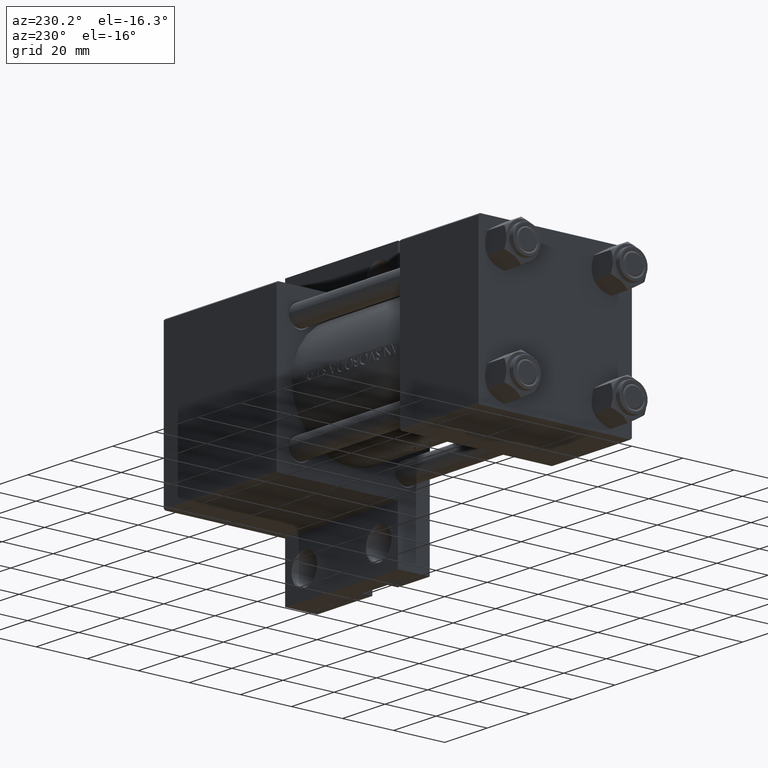
[diagram: clean part render]
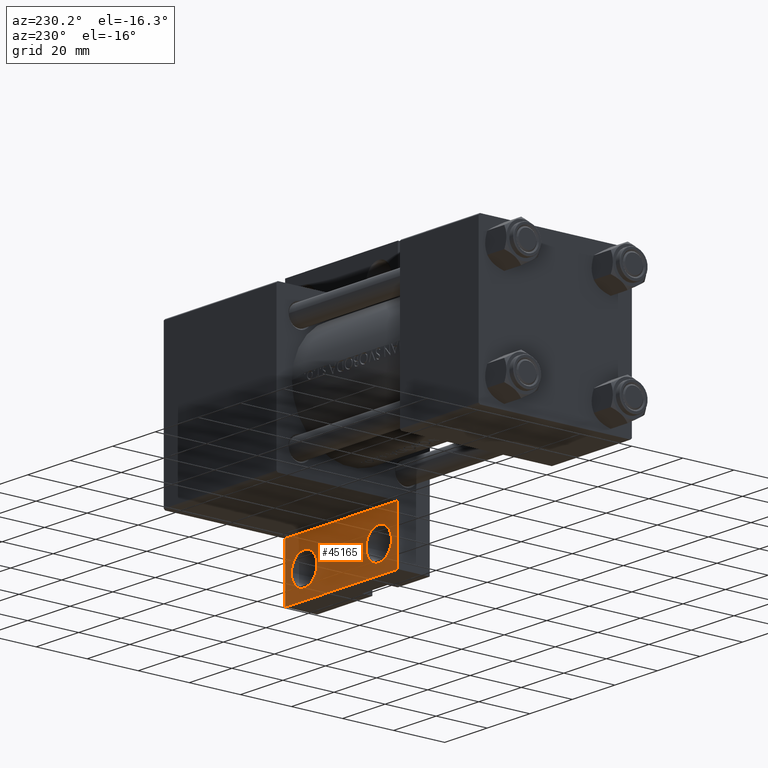
[diagram: same view with one face highlighted and labeled with its STEP entity id]
A machine part, auxiliary view. The second image highlights one B-rep face of the part: STEP entity #45165.
In plain terms, the highlighted planar face has unit normal (0, 1, 0).
Its self-contained STEP definition (entity closure, byte-faithful):
#258 = AXIS2_PLACEMENT_3D ( 'NONE', #13576, #20982, #1742 ) ;
#1197 = EDGE_LOOP ( 'NONE', ( #34072, #47144, #29083, #22938 ) ) ;
#1657 = CARTESIAN_POINT ( 'NONE',  ( 148.0000000000000000, 29.99999999999999289, -17.49999999999999645 ) ) ;
#1742 = DIRECTION ( 'NONE',  ( 1.000000000000000000, 0.000000000000000000, 0.000000000000000000 ) ) ;
#2495 = EDGE_LOOP ( 'NONE', ( #28538, #35446 ) ) ;
#3774 = VERTEX_POINT ( 'NONE', #47332 ) ;
#3791 = EDGE_CURVE ( 'NONE', #39271, #14606, #47523, .T. ) ;
#4449 = EDGE_CURVE ( 'NONE', #42596, #40546, #19044, .T. ) ;
#4745 = CARTESIAN_POINT ( 'NONE',  ( 95.00000000000000000, 51.50000000000000711, -17.49999999999999645 ) ) ;
#5086 = CIRCLE ( 'NONE', #38103, 5.999499999999990507 ) ;
#5700 = ORIENTED_EDGE ( 'NONE', *, *, #48696, .T. ) ;
#6081 = DIRECTION ( 'NONE',  ( -0.000000000000000000, -0.000000000000000000, -1.000000000000000000 ) ) ;
#6088 = AXIS2_PLACEMENT_3D ( 'NONE', #17337, #36295, #24241 ) ;
#8169 = VECTOR ( 'NONE', #34563, 1000.000000000000000 ) ;
#8272 = AXIS2_PLACEMENT_3D ( 'NONE', #13459, #6081, #36851 ) ;
#8501 = FACE_BOUND ( 'NONE', #32061, .T. ) ;
#8955 = EDGE_CURVE ( 'NONE', #10906, #15093, #35988, .T. ) ;
#9881 = DIRECTION ( 'NONE',  ( 0.000000000000000000, -1.000000000000000000, 0.000000000000000000 ) ) ;
#10906 = VERTEX_POINT ( 'NONE', #13520 ) ;
#11985 = EDGE_CURVE ( 'NONE', #40546, #10906, #47889, .T. ) ;
#13459 = CARTESIAN_POINT ( 'NONE',  ( 138.9999999999999432, 41.50000000000000000, -17.49999999999999645 ) ) ;
#13520 = CARTESIAN_POINT ( 'NONE',  ( 148.0000000000000000, 51.49999999999999289, -17.49999999999999645 ) ) ;
#13545 = DIRECTION ( 'NONE',  ( 1.000000000000000000, 0.000000000000000000, 0.000000000000000000 ) ) ;
#13576 = CARTESIAN_POINT ( 'NONE',  ( 103.9999999999999574, 41.49999999999997868, -17.49999999999999645 ) ) ;
#13932 = VECTOR ( 'NONE', #22018, 1000.000000000000000 ) ;
#14544 = CARTESIAN_POINT ( 'NONE',  ( 95.00000000000000000, 30.00000000000000000, -17.49999999999999645 ) ) ;
#14606 = VERTEX_POINT ( 'NONE', #26211 ) ;
#15093 = VERTEX_POINT ( 'NONE', #1657 ) ;
#15510 = LINE ( 'NONE', #14544, #24303 ) ;
#16418 = CIRCLE ( 'NONE', #43954, 5.999500000000018929 ) ;
#17337 = CARTESIAN_POINT ( 'NONE',  ( 0.000000000000000000, 0.000000000000000000, -17.49999999999999645 ) ) ;
#18917 = DIRECTION ( 'NONE',  ( 1.000000000000000000, 0.000000000000000000, 0.000000000000000000 ) ) ;
#19044 = LINE ( 'NONE', #4745, #8169 ) ;
#19348 = EDGE_CURVE ( 'NONE', #15093, #42596, #15510, .T. ) ;
#20982 = DIRECTION ( 'NONE',  ( -0.000000000000000000, -0.000000000000000000, -1.000000000000000000 ) ) ;
#22018 = DIRECTION ( 'NONE',  ( 1.000000000000000000, -2.618450529776313247E-16, 0.000000000000000000 ) ) ;
#22938 = ORIENTED_EDGE ( 'NONE', *, *, #11985, .F. ) ;
#23857 = VERTEX_POINT ( 'NONE', #32829 ) ;
#24241 = DIRECTION ( 'NONE',  ( 1.000000000000000000, 0.000000000000000000, -0.000000000000000000 ) ) ;
#24303 = VECTOR ( 'NONE', #40659, 1000.000000000000000 ) ;
#24730 = PLANE ( 'NONE',  #6088 ) ;
#26211 = CARTESIAN_POINT ( 'NONE',  ( 109.9994999999999692, 41.49999999999997868, -17.49999999999999645 ) ) ;
#28538 = ORIENTED_EDGE ( 'NONE', *, *, #38504, .T. ) ;
#29068 = DIRECTION ( 'NONE',  ( -0.000000000000000000, -0.000000000000000000, -1.000000000000000000 ) ) ;
#29083 = ORIENTED_EDGE ( 'NONE', *, *, #8955, .F. ) ;
#29171 = CARTESIAN_POINT ( 'NONE',  ( 95.00000000000000000, 51.50000000000000711, -17.49999999999999645 ) ) ;
#29271 = DIRECTION ( 'NONE',  ( -0.000000000000000000, -0.000000000000000000, -1.000000000000000000 ) ) ;
#29496 = CIRCLE ( 'NONE', #8272, 5.999499999999990507 ) ;
#32061 = EDGE_LOOP ( 'NONE', ( #5700, #33817 ) ) ;
#32289 = CARTESIAN_POINT ( 'NONE',  ( 138.9999999999999432, 41.50000000000000000, -17.49999999999999645 ) ) ;
#32829 = CARTESIAN_POINT ( 'NONE',  ( 144.9994999999999550, 41.50000000000000000, -17.49999999999999645 ) ) ;
#33817 = ORIENTED_EDGE ( 'NONE', *, *, #3791, .T. ) ;
#34072 = ORIENTED_EDGE ( 'NONE', *, *, #4449, .F. ) ;
#34563 = DIRECTION ( 'NONE',  ( -0.000000000000000000, 1.000000000000000000, -0.000000000000000000 ) ) ;
#34591 = CARTESIAN_POINT ( 'NONE',  ( 98.00049999999993133, 41.49999999999997868, -17.49999999999999645 ) ) ;
#35446 = ORIENTED_EDGE ( 'NONE', *, *, #35462, .T. ) ;
#35462 = EDGE_CURVE ( 'NONE', #3774, #23857, #29496, .T. ) ;
#35988 = LINE ( 'NONE', #47314, #40637 ) ;
#36295 = DIRECTION ( 'NONE',  ( 0.000000000000000000, 0.000000000000000000, 1.000000000000000000 ) ) ;
#36851 = DIRECTION ( 'NONE',  ( 1.000000000000000000, 0.000000000000000000, 0.000000000000000000 ) ) ;
#38103 = AXIS2_PLACEMENT_3D ( 'NONE', #32289, #29068, #13545 ) ;
#38504 = EDGE_CURVE ( 'NONE', #23857, #3774, #5086, .T. ) ;
#39271 = VERTEX_POINT ( 'NONE', #34591 ) ;
#40005 = FACE_OUTER_BOUND ( 'NONE', #1197, .T. ) ;
#40546 = VERTEX_POINT ( 'NONE', #46087 ) ;
#40637 = VECTOR ( 'NONE', #9881, 1000.000000000000000 ) ;
#40659 = DIRECTION ( 'NONE',  ( -1.000000000000000000, 1.309225264888156623E-16, -0.000000000000000000 ) ) ;
#41092 = CARTESIAN_POINT ( 'NONE',  ( 103.9999999999999574, 41.49999999999997868, -17.49999999999999645 ) ) ;
#42237 = FACE_BOUND ( 'NONE', #2495, .T. ) ;
#42596 = VERTEX_POINT ( 'NONE', #47874 ) ;
#43954 = AXIS2_PLACEMENT_3D ( 'NONE', #41092, #29271, #18917 ) ;
#45165 = ADVANCED_FACE ( 'NONE', ( #42237, #8501, #40005 ), #24730, .T. ) ;
#46087 = CARTESIAN_POINT ( 'NONE',  ( 95.00000000000000000, 51.50000000000000711, -17.49999999999999645 ) ) ;
#47144 = ORIENTED_EDGE ( 'NONE', *, *, #19348, .F. ) ;
#47314 = CARTESIAN_POINT ( 'NONE',  ( 148.0000000000000000, 51.49999999999999289, -17.49999999999999645 ) ) ;
#47332 = CARTESIAN_POINT ( 'NONE',  ( 133.0004999999999598, 41.50000000000000000, -17.49999999999999645 ) ) ;
#47523 = CIRCLE ( 'NONE', #258, 5.999500000000018929 ) ;
#47874 = CARTESIAN_POINT ( 'NONE',  ( 95.00000000000000000, 30.00000000000000000, -17.49999999999998224 ) ) ;
#47889 = LINE ( 'NONE', #29171, #13932 ) ;
#48696 = EDGE_CURVE ( 'NONE', #14606, #39271, #16418, .T. ) ;